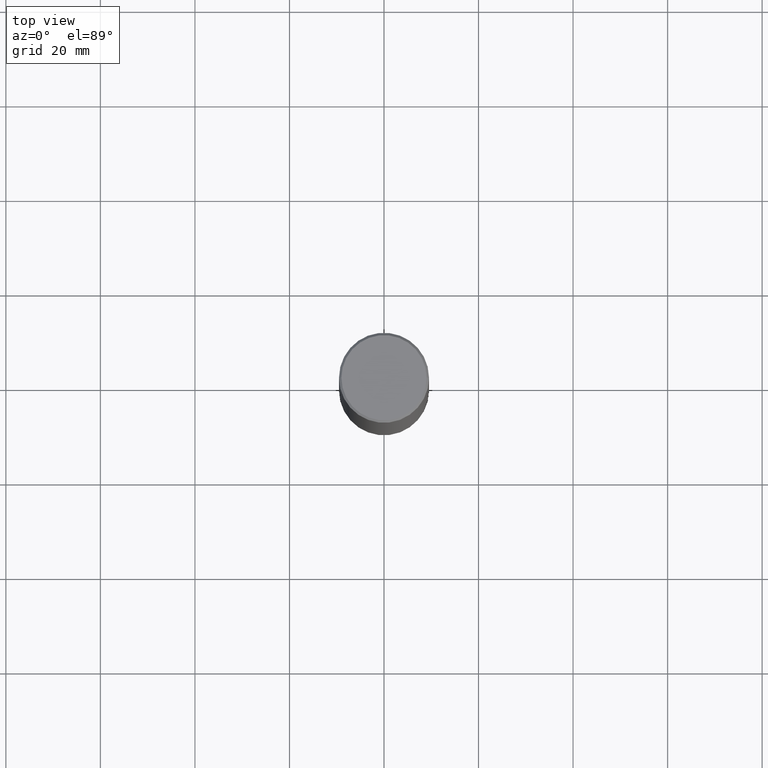
[diagram: clean part render]
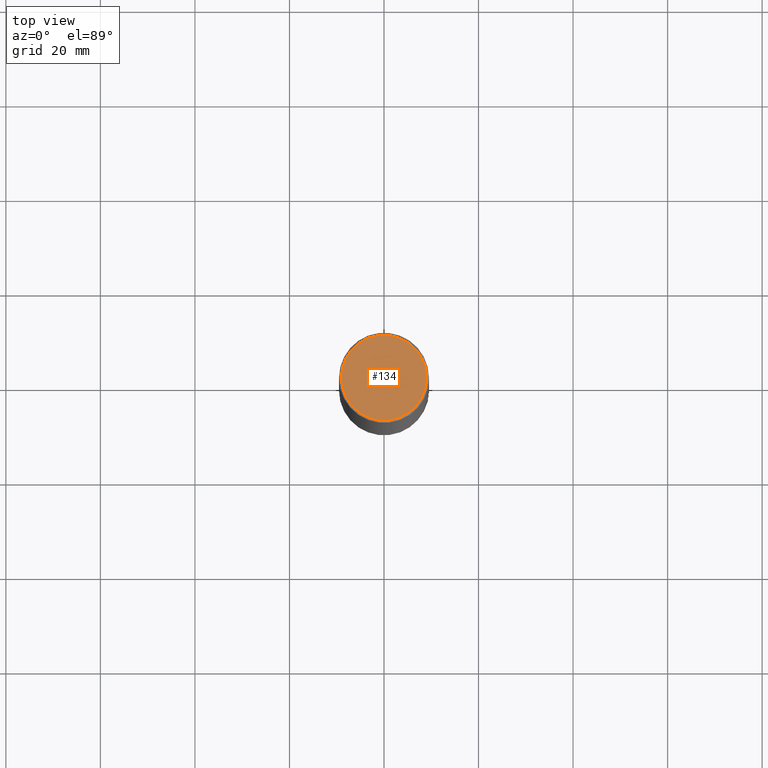
[diagram: same view with one face highlighted and labeled with its STEP entity id]
A machine part, top view. The second image highlights one B-rep face of the part: STEP entity #134.
In plain terms, the highlighted planar face has unit normal (0, -0, -1).
Its self-contained STEP definition (entity closure, byte-faithful):
#1 = CIRCLE ( 'NONE', #185, 0.3549999999999997047 ) ;
#19 = DIRECTION ( 'NONE',  ( 1.000000000000000000, -6.982962677686265922E-15, 4.876231632511992107E-29 ) ) ;
#22 = VERTEX_POINT ( 'NONE', #235 ) ;
#26 = EDGE_CURVE ( 'NONE', #22, #283, #184, .T. ) ;
#32 = EDGE_LOOP ( 'NONE', ( #218, #34 ) ) ;
#34 = ORIENTED_EDGE ( 'NONE', *, *, #358, .T. ) ;
#48 = AXIS2_PLACEMENT_3D ( 'NONE', #52, #176, #296 ) ;
#52 = CARTESIAN_POINT ( 'NONE',  ( 2.478951750578622237E-15, 0.3549999999999997047, -1.237341619044265441E-15 ) ) ;
#100 = CARTESIAN_POINT ( 'NONE',  ( -1.043851414335219820E-46, 1.490343170380447200E-32, 4.268512490100411279E-18 ) ) ;
#134 = ADVANCED_FACE ( 'NONE', ( #230 ), #261, .F. ) ;
#142 = CARTESIAN_POINT ( 'NONE',  ( 0.3549999999999997047, -2.538996582575039076E-15, 4.268512490117958041E-18 ) ) ;
#176 = DIRECTION ( 'NONE',  ( 2.438088387897960049E-29, -3.491481338843145188E-15, -1.000000000000000000 ) ) ;
#184 = CIRCLE ( 'NONE', #273, 0.3549999999999997047 ) ;
#185 = AXIS2_PLACEMENT_3D ( 'NONE', #365, #272, #19 ) ;
#218 = ORIENTED_EDGE ( 'NONE', *, *, #26, .T. ) ;
#230 = FACE_OUTER_BOUND ( 'NONE', #32, .T. ) ;
#235 = CARTESIAN_POINT ( 'NONE',  ( -0.3549999999999997047, 2.513866563967053491E-15, 4.268512490082953109E-18 ) ) ;
#261 = PLANE ( 'NONE',  #48 ) ;
#272 = DIRECTION ( 'NONE',  ( -2.445468806185136597E-29, 3.491481338843145583E-15, 1.000000000000000000 ) ) ;
#273 = AXIS2_PLACEMENT_3D ( 'NONE', #100, #361, #297 ) ;
#283 = VERTEX_POINT ( 'NONE', #142 ) ;
#296 = DIRECTION ( 'NONE',  ( -1.000000000000000000, 6.982962677686265922E-15, -4.876176775795935793E-29 ) ) ;
#297 = DIRECTION ( 'NONE',  ( 1.000000000000000000, -6.982962677686265922E-15, 4.876231632511992107E-29 ) ) ;
#358 = EDGE_CURVE ( 'NONE', #283, #22, #1, .T. ) ;
#361 = DIRECTION ( 'NONE',  ( -2.445468806185136597E-29, 3.491481338843145583E-15, 1.000000000000000000 ) ) ;
#365 = CARTESIAN_POINT ( 'NONE',  ( -1.043851414335219820E-46, 1.490343170380447200E-32, 4.268512490100411279E-18 ) ) ;